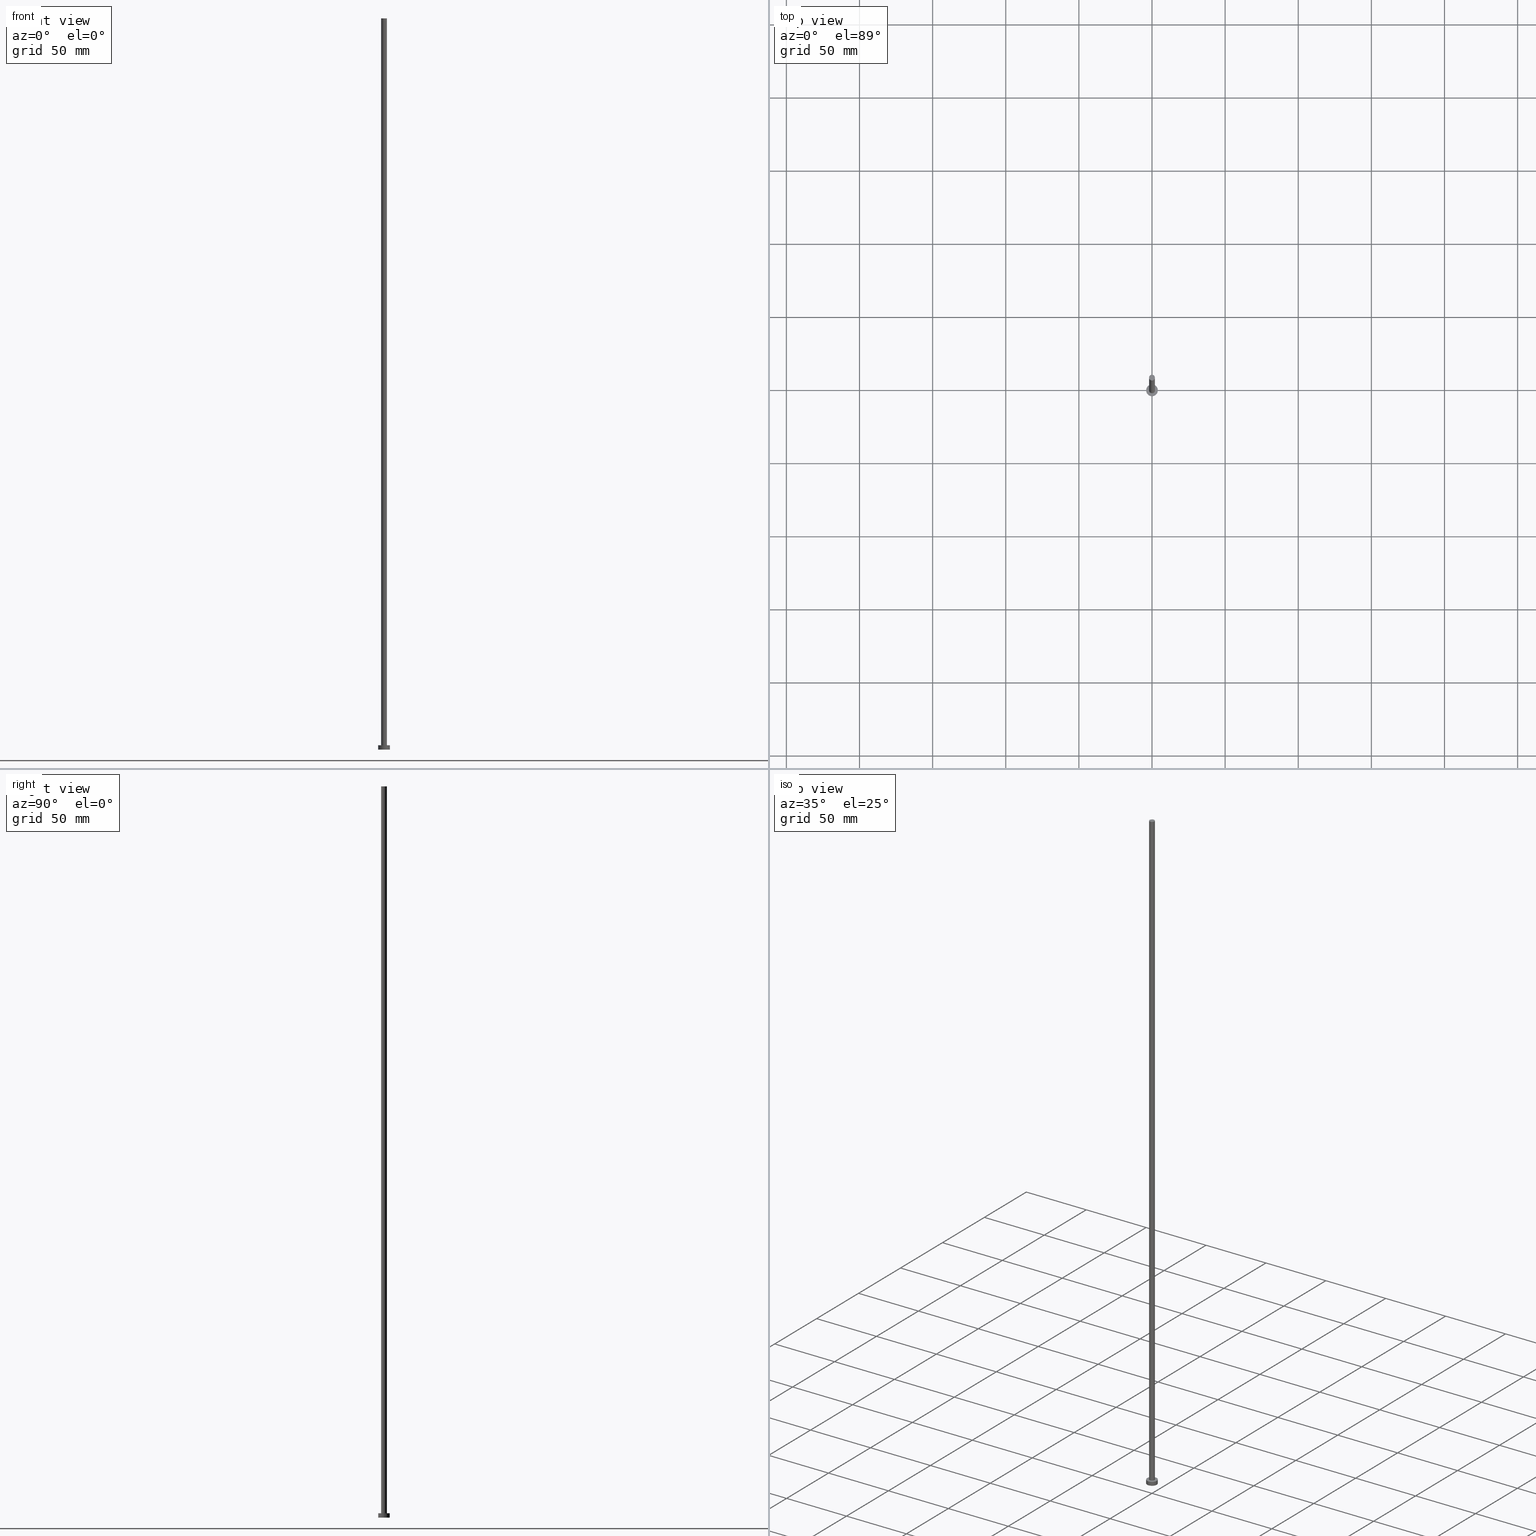
[diagram: canonical four-view strip — front | top / right | iso, engineering-drawing reading convention]
A machine part, canonical four-view strip (front | top / right | iso — engineering-drawing reading convention). The complete STEP part file that produces these views, byte-faithful:
ISO-10303-21;
HEADER;
FILE_DESCRIPTION (( 'STEP AP203' ),
    '1' );
FILE_NAME ('b286.STEP',
    '2026-02-06T12:42:15',
    ( '' ),
    ( '' ),
    'SwSTEP 2.0',
    'SolidWorks 2019',
    '' );
FILE_SCHEMA (( 'CONFIG_CONTROL_DESIGN' ));
ENDSEC;

DATA;
#1 = PERSON_AND_ORGANIZATION_ROLE ( 'design_supplier' ) ;
#2 = APPROVAL ( #67, 'NEUR�EN�' ) ;
#3 = AXIS2_PLACEMENT_3D ( 'NONE', #215, #155, #243 ) ;
#4 = CARTESIAN_POINT ( 'NONE',  ( 0.000000000000000000, 0.000000000000000000, 500.0000000000000000 ) ) ;
#5 = EDGE_CURVE ( 'NONE', #96, #57, #226, .T. ) ;
#6 = EDGE_LOOP ( 'NONE', ( #81, #114 ) ) ;
#7 = DIRECTION ( 'NONE',  ( -0.000000000000000000, -0.000000000000000000, -1.000000000000000000 ) ) ;
#8 = CIRCLE ( 'NONE', #43, 4.000000000000000000 ) ;
#9 = CC_DESIGN_PERSON_AND_ORGANIZATION_ASSIGNMENT ( #78, #26, ( #107 ) ) ;
#10 = DIRECTION ( 'NONE',  ( 1.000000000000000000, 0.000000000000000000, 0.000000000000000000 ) ) ;
#11 = DIRECTION ( 'NONE',  ( -0.000000000000000000, -0.000000000000000000, -1.000000000000000000 ) ) ;
#12 = COORDINATED_UNIVERSAL_TIME_OFFSET ( 1, 0, .AHEAD. ) ;
#13 = MECHANICAL_CONTEXT ( 'NONE', #202, 'mechanical' ) ;
#14 = DIRECTION ( 'NONE',  ( 0.000000000000000000, 0.000000000000000000, 1.000000000000000000 ) ) ;
#15 = APPROVAL_DATE_TIME ( #150, #126 ) ;
#16 = CARTESIAN_POINT ( 'NONE',  ( 0.000000000000000000, 0.000000000000000000, 0.000000000000000000 ) ) ;
#17 = CYLINDRICAL_SURFACE ( 'NONE', #42, 4.000000000000000000 ) ;
#18 = EDGE_CURVE ( 'NONE', #191, #151, #28, .T. ) ;
#19 = ORIENTED_EDGE ( 'NONE', *, *, #246, .F. ) ;
#20 = ORIENTED_EDGE ( 'NONE', *, *, #212, .T. ) ;
#21 = EDGE_LOOP ( 'NONE', ( #209, #20, #196, #19 ) ) ;
#22 =( NAMED_UNIT ( * ) SI_UNIT ( $, .STERADIAN. ) SOLID_ANGLE_UNIT ( ) );
#23 =( LENGTH_UNIT ( ) NAMED_UNIT ( * ) SI_UNIT ( .MILLI., .METRE. ) );
#24 = CARTESIAN_POINT ( 'NONE',  ( -4.000000000000000000, 0.000000000000000000, 3.000000000000000000 ) ) ;
#25 = CC_DESIGN_PERSON_AND_ORGANIZATION_ASSIGNMENT ( #39, #1, ( #101 ) ) ;
#26 = PERSON_AND_ORGANIZATION_ROLE ( 'classification_officer' ) ;
#27 = CC_DESIGN_APPROVAL ( #2, ( #101 ) ) ;
#28 = LINE ( 'NONE', #139, #219 ) ;
#29 = EDGE_LOOP ( 'NONE', ( #65, #203, #135, #252 ) ) ;
#30 = CALENDAR_DATE ( 2026, 6, 2 ) ;
#31 = EDGE_CURVE ( 'NONE', #151, #235, #99, .T. ) ;
#32 = CARTESIAN_POINT ( 'NONE',  ( 0.000000000000000000, 0.000000000000000000, 3.000000000000000000 ) ) ;
#33 = AXIS2_PLACEMENT_3D ( 'NONE', #182, #146, #10 ) ;
#34 = APPROVAL_ROLE ( '' ) ;
#35 = CARTESIAN_POINT ( 'NONE',  ( 2.000000000000000000, 2.449293598294705921E-16, 3.000000000000000000 ) ) ;
#36 = CARTESIAN_POINT ( 'NONE',  ( -4.000000000000000000, 0.000000000000000000, 3.000000000000000000 ) ) ;
#37 = DIRECTION ( 'NONE',  ( 1.000000000000000000, 0.000000000000000000, 0.000000000000000000 ) ) ;
#38 = PRODUCT_RELATED_PRODUCT_CATEGORY ( 'detail', '', ( #80 ) ) ;
#39 = PERSON_AND_ORGANIZATION ( #156, #86 ) ;
#40 = DIRECTION ( 'NONE',  ( -1.000000000000000000, 0.000000000000000000, 0.000000000000000000 ) ) ;
#41 = EDGE_CURVE ( 'NONE', #105, #235, #85, .T. ) ;
#42 = AXIS2_PLACEMENT_3D ( 'NONE', #92, #7, #169 ) ;
#43 = AXIS2_PLACEMENT_3D ( 'NONE', #16, #91, #168 ) ;
#44 = CC_DESIGN_PERSON_AND_ORGANIZATION_ASSIGNMENT ( #134, #220, ( #101 ) ) ;
#45 = AXIS2_PLACEMENT_3D ( 'NONE', #213, #217, #40 ) ;
#46 = EDGE_LOOP ( 'NONE', ( #73, #93 ) ) ;
#47 = EDGE_LOOP ( 'NONE', ( #121, #157 ) ) ;
#48 = CYLINDRICAL_SURFACE ( 'NONE', #118, 2.000000000000000000 ) ;
#49 = CC_DESIGN_APPROVAL ( #177, ( #107 ) ) ;
#50 = ADVANCED_FACE ( 'NONE', ( #127 ), #205, .F. ) ;
#51 = DATE_AND_TIME ( #30, #216 ) ;
#52 = EDGE_LOOP ( 'NONE', ( #56, #170, #123, #149 ) ) ;
#53 = AXIS2_PLACEMENT_3D ( 'NONE', #70, #54, #225 ) ;
#54 = DIRECTION ( 'NONE',  ( 0.000000000000000000, 0.000000000000000000, 1.000000000000000000 ) ) ;
#55 = CARTESIAN_POINT ( 'NONE',  ( 0.000000000000000000, 0.000000000000000000, 3.000000000000000000 ) ) ;
#56 = ORIENTED_EDGE ( 'NONE', *, *, #18, .F. ) ;
#57 = VERTEX_POINT ( 'NONE', #160 ) ;
#58 = LINE ( 'NONE', #24, #152 ) ;
#59 = EDGE_CURVE ( 'NONE', #192, #239, #248, .T. ) ;
#60 = LOCAL_TIME ( 13, 42, 15.00000000000000000, #228 ) ;
#61 = CALENDAR_DATE ( 2026, 6, 2 ) ;
#62 = PRODUCT_DEFINITION_SHAPE ( 'NONE', 'NONE',  #174 ) ;
#63 = AXIS2_PLACEMENT_3D ( 'NONE', #55, #172, #231 ) ;
#64 = MANIFOLD_SOLID_BREP ( 'P�idat vysunut�m3', #194 ) ;
#65 = ORIENTED_EDGE ( 'NONE', *, *, #212, .F. ) ;
#66 = PLANE ( 'NONE',  #181 ) ;
#67 = APPROVAL_STATUS ( 'not_yet_approved' ) ;
#68 = DIRECTION ( 'NONE',  ( -1.000000000000000000, 0.000000000000000000, 0.000000000000000000 ) ) ;
#69 = APPROVAL_DATE_TIME ( #167, #2 ) ;
#70 = CARTESIAN_POINT ( 'NONE',  ( 0.000000000000000000, 0.000000000000000000, 0.000000000000000000 ) ) ;
#71 = ORIENTED_EDGE ( 'NONE', *, *, #5, .F. ) ;
#72 = PERSON_AND_ORGANIZATION ( #156, #86 ) ;
#73 = ORIENTED_EDGE ( 'NONE', *, *, #199, .F. ) ;
#74 = EDGE_LOOP ( 'NONE', ( #71, #238 ) ) ;
#75 = CIRCLE ( 'NONE', #109, 2.000000000000000000 ) ;
#76 = ADVANCED_FACE ( 'NONE', ( #106 ), #48, .T. ) ;
#77 = AXIS2_PLACEMENT_3D ( 'NONE', #4, #79, #245 ) ;
#78 = PERSON_AND_ORGANIZATION ( #156, #86 ) ;
#79 = DIRECTION ( 'NONE',  ( 0.000000000000000000, 0.000000000000000000, 1.000000000000000000 ) ) ;
#80 = PRODUCT ( 'b286', 'b286', '', ( #13 ) ) ;
#81 = ORIENTED_EDGE ( 'NONE', *, *, #59, .T. ) ;
#82 = ADVANCED_FACE ( 'NONE', ( #206 ), #87, .T. ) ;
#83 = AXIS2_PLACEMENT_3D ( 'NONE', #32, #227, #186 ) ;
#84 = FACE_OUTER_BOUND ( 'NONE', #47, .T. ) ;
#85 = LINE ( 'NONE', #183, #178 ) ;
#86 = ORGANIZATION ( 'NEUR�EN�', 'NEUR�EN�', '' ) ;
#87 = CYLINDRICAL_SURFACE ( 'NONE', #223, 2.000000000000000000 ) ;
#88 = DATE_TIME_ROLE ( 'creation_date' ) ;
#89 = PERSON_AND_ORGANIZATION_ROLE ( 'design_owner' ) ;
#90 = CALENDAR_DATE ( 2026, 6, 2 ) ;
#91 = DIRECTION ( 'NONE',  ( 0.000000000000000000, 0.000000000000000000, 1.000000000000000000 ) ) ;
#92 = CARTESIAN_POINT ( 'NONE',  ( 0.000000000000000000, 0.000000000000000000, 3.000000000000000000 ) ) ;
#93 = ORIENTED_EDGE ( 'NONE', *, *, #31, .F. ) ;
#94 = LOCAL_TIME ( 13, 42, 15.00000000000000000, #112 ) ;
#95 = CALENDAR_DATE ( 2026, 6, 2 ) ;
#96 = VERTEX_POINT ( 'NONE', #144 ) ;
#97 = APPROVAL_PERSON_ORGANIZATION ( #142, #126, #34 ) ;
#98 = EDGE_CURVE ( 'NONE', #105, #191, #75, .T. ) ;
#99 = CIRCLE ( 'NONE', #33, 2.000000000000000000 ) ;
#100 = DIRECTION ( 'NONE',  ( -0.000000000000000000, -0.000000000000000000, -1.000000000000000000 ) ) ;
#101 = PRODUCT_DEFINITION_FORMATION_WITH_SPECIFIED_SOURCE ( 'LIBOVOLN�', '', #80, .NOT_KNOWN. ) ;
#102 = ADVANCED_FACE ( 'NONE', ( #190 ), #17, .T. ) ;
#103 = DIRECTION ( 'NONE',  ( -0.000000000000000000, -0.000000000000000000, -1.000000000000000000 ) ) ;
#104 = AXIS2_PLACEMENT_3D ( 'NONE', #128, #14, #147 ) ;
#105 = VERTEX_POINT ( 'NONE', #251 ) ;
#106 = FACE_OUTER_BOUND ( 'NONE', #52, .T. ) ;
#107 = SECURITY_CLASSIFICATION ( '', '', #214 ) ;
#108 = FACE_OUTER_BOUND ( 'NONE', #6, .T. ) ;
#109 = AXIS2_PLACEMENT_3D ( 'NONE', #180, #110, #122 ) ;
#110 = DIRECTION ( 'NONE',  ( 0.000000000000000000, 0.000000000000000000, 1.000000000000000000 ) ) ;
#111 = ORIENTED_EDGE ( 'NONE', *, *, #31, .T. ) ;
#112 = COORDINATED_UNIVERSAL_TIME_OFFSET ( 1, 0, .AHEAD. ) ;
#113 = LINE ( 'NONE', #255, #204 ) ;
#114 = ORIENTED_EDGE ( 'NONE', *, *, #224, .T. ) ;
#115 = CIRCLE ( 'NONE', #195, 4.000000000000000000 ) ;
#116 = CARTESIAN_POINT ( 'NONE',  ( -2.000000000000000000, 0.000000000000000000, 3.000000000000000000 ) ) ;
#117 = APPROVAL_STATUS ( 'not_yet_approved' ) ;
#118 = AXIS2_PLACEMENT_3D ( 'NONE', #124, #11, #249 ) ;
#119 = CARTESIAN_POINT ( 'NONE',  ( 0.000000000000000000, 0.000000000000000000, 0.000000000000000000 ) ) ;
#120 = DIRECTION ( 'NONE',  ( 1.000000000000000000, 0.000000000000000000, 0.000000000000000000 ) ) ;
#121 = ORIENTED_EDGE ( 'NONE', *, *, #98, .T. ) ;
#122 = DIRECTION ( 'NONE',  ( 1.000000000000000000, 0.000000000000000000, 0.000000000000000000 ) ) ;
#123 = ORIENTED_EDGE ( 'NONE', *, *, #41, .T. ) ;
#124 = CARTESIAN_POINT ( 'NONE',  ( 0.000000000000000000, 0.000000000000000000, 500.0000000000000000 ) ) ;
#125 = LOCAL_TIME ( 13, 42, 15.00000000000000000, #234 ) ;
#126 = APPROVAL ( #229, 'NEUR�EN�' ) ;
#127 = FACE_OUTER_BOUND ( 'NONE', #74, .T. ) ;
#128 = CARTESIAN_POINT ( 'NONE',  ( 0.000000000000000000, 0.000000000000000000, 3.000000000000000000 ) ) ;
#129 = EDGE_LOOP ( 'NONE', ( #230, #207, #111, #159 ) ) ;
#130 = CC_DESIGN_DATE_AND_TIME_ASSIGNMENT ( #153, #241, ( #107 ) ) ;
#131 = PERSON_AND_ORGANIZATION ( #156, #86 ) ;
#132 =( NAMED_UNIT ( * ) PLANE_ANGLE_UNIT ( ) SI_UNIT ( $, .RADIAN. ) );
#133 = ADVANCED_BREP_SHAPE_REPRESENTATION ( 'b286', ( #64, #176 ), #161 ) ;
#134 = PERSON_AND_ORGANIZATION ( #156, #86 ) ;
#135 = ORIENTED_EDGE ( 'NONE', *, *, #246, .T. ) ;
#136 = DIRECTION ( 'NONE',  ( 0.000000000000000000, 0.000000000000000000, 1.000000000000000000 ) ) ;
#137 = CARTESIAN_POINT ( 'NONE',  ( 0.000000000000000000, 0.000000000000000000, 500.0000000000000000 ) ) ;
#138 = DIRECTION ( 'NONE',  ( 1.000000000000000000, 0.000000000000000000, -0.000000000000000000 ) ) ;
#139 = CARTESIAN_POINT ( 'NONE',  ( 2.000000000000000000, 2.449293598294705921E-16, 500.0000000000000000 ) ) ;
#140 = CC_DESIGN_DATE_AND_TIME_ASSIGNMENT ( #51, #88, ( #174 ) ) ;
#141 = APPROVAL_ROLE ( '' ) ;
#142 = PERSON_AND_ORGANIZATION ( #156, #86 ) ;
#143 = FACE_BOUND ( 'NONE', #46, .T. ) ;
#144 = CARTESIAN_POINT ( 'NONE',  ( -4.000000000000000000, 0.000000000000000000, 0.000000000000000000 ) ) ;
#145 = ADVANCED_FACE ( 'NONE', ( #84 ), #66, .T. ) ;
#146 = DIRECTION ( 'NONE',  ( 0.000000000000000000, 0.000000000000000000, 1.000000000000000000 ) ) ;
#147 = DIRECTION ( 'NONE',  ( 1.000000000000000000, 0.000000000000000000, -0.000000000000000000 ) ) ;
#148 = APPROVAL_DATE_TIME ( #254, #177 ) ;
#149 = ORIENTED_EDGE ( 'NONE', *, *, #199, .T. ) ;
#150 = DATE_AND_TIME ( #171, #94 ) ;
#151 = VERTEX_POINT ( 'NONE', #35 ) ;
#152 = VECTOR ( 'NONE', #100, 1000.000000000000000 ) ;
#153 = DATE_AND_TIME ( #61, #237 ) ;
#154 = APPROVAL_PERSON_ORGANIZATION ( #163, #2, #141 ) ;
#155 = DIRECTION ( 'NONE',  ( 0.000000000000000000, 0.000000000000000000, 1.000000000000000000 ) ) ;
#156 = PERSON ( 'NEUR�EN�', 'NEUR�EN�', 'NEUR�EN�', ('NEUR�EN�'), ('NEUR�EN�'), ('NEUR�EN�') ) ;
#157 = ORIENTED_EDGE ( 'NONE', *, *, #253, .T. ) ;
#158 = DIRECTION ( 'NONE',  ( 0.000000000000000000, 0.000000000000000000, 1.000000000000000000 ) ) ;
#159 = ORIENTED_EDGE ( 'NONE', *, *, #41, .F. ) ;
#160 = CARTESIAN_POINT ( 'NONE',  ( 4.000000000000000000, 4.898587196589412829E-16, 0.000000000000000000 ) ) ;
#161 =( GEOMETRIC_REPRESENTATION_CONTEXT ( 3 ) GLOBAL_UNCERTAINTY_ASSIGNED_CONTEXT ( ( #179 ) ) GLOBAL_UNIT_ASSIGNED_CONTEXT ( ( #23, #132, #22 ) ) REPRESENTATION_CONTEXT ( 'NONE', 'WORKASPACE' ) );
#162 = APPLICATION_CONTEXT ( 'configuration controlled 3d designs of mechanical parts and assemblies' ) ;
#163 = PERSON_AND_ORGANIZATION ( #156, #86 ) ;
#164 = APPLICATION_PROTOCOL_DEFINITION ( 'international standard', 'config_control_design', 1994, #162 ) ;
#165 = CARTESIAN_POINT ( 'NONE',  ( 0.000000000000000000, 0.000000000000000000, 500.0000000000000000 ) ) ;
#166 = ADVANCED_FACE ( 'NONE', ( #143, #108 ), #185, .T. ) ;
#167 = DATE_AND_TIME ( #90, #60 ) ;
#168 = DIRECTION ( 'NONE',  ( 1.000000000000000000, 0.000000000000000000, 0.000000000000000000 ) ) ;
#169 = DIRECTION ( 'NONE',  ( -1.000000000000000000, 0.000000000000000000, 0.000000000000000000 ) ) ;
#170 = ORIENTED_EDGE ( 'NONE', *, *, #98, .F. ) ;
#171 = CALENDAR_DATE ( 2026, 6, 2 ) ;
#172 = DIRECTION ( 'NONE',  ( 0.000000000000000000, 0.000000000000000000, 1.000000000000000000 ) ) ;
#173 = APPROVAL_PERSON_ORGANIZATION ( #131, #177, #218 ) ;
#174 = PRODUCT_DEFINITION ( 'NEZN�M�', '', #101, #187 ) ;
#175 = EDGE_CURVE ( 'NONE', #57, #96, #8, .T. ) ;
#176 = AXIS2_PLACEMENT_3D ( 'NONE', #119, #158, #120 ) ;
#177 = APPROVAL ( #117, 'NEUR�EN�' ) ;
#178 = VECTOR ( 'NONE', #232, 1000.000000000000000 ) ;
#179 = UNCERTAINTY_MEASURE_WITH_UNIT (LENGTH_MEASURE( 1.000000000000000082E-05 ), #23, 'distance_accuracy_value', 'NONE');
#180 = CARTESIAN_POINT ( 'NONE',  ( 0.000000000000000000, 0.000000000000000000, 500.0000000000000000 ) ) ;
#181 = AXIS2_PLACEMENT_3D ( 'NONE', #137, #136, #138 ) ;
#182 = CARTESIAN_POINT ( 'NONE',  ( 0.000000000000000000, 0.000000000000000000, 3.000000000000000000 ) ) ;
#183 = CARTESIAN_POINT ( 'NONE',  ( -2.000000000000000000, 0.000000000000000000, 500.0000000000000000 ) ) ;
#184 = PERSON_AND_ORGANIZATION_ROLE ( 'creator' ) ;
#185 = PLANE ( 'NONE',  #104 ) ;
#186 = DIRECTION ( 'NONE',  ( 1.000000000000000000, 0.000000000000000000, 0.000000000000000000 ) ) ;
#187 = DESIGN_CONTEXT ( 'detailed design', #162, 'design' ) ;
#188 = CIRCLE ( 'NONE', #77, 2.000000000000000000 ) ;
#189 = SHAPE_DEFINITION_REPRESENTATION ( #62, #133 ) ;
#190 = FACE_OUTER_BOUND ( 'NONE', #29, .T. ) ;
#191 = VERTEX_POINT ( 'NONE', #233 ) ;
#192 = VERTEX_POINT ( 'NONE', #36 ) ;
#193 = CC_DESIGN_PERSON_AND_ORGANIZATION_ASSIGNMENT ( #72, #89, ( #80 ) ) ;
#194 = CLOSED_SHELL ( 'NONE', ( #82, #222, #102, #166, #50, #76, #145 ) ) ;
#195 = AXIS2_PLACEMENT_3D ( 'NONE', #200, #210, #37 ) ;
#196 = ORIENTED_EDGE ( 'NONE', *, *, #175, .T. ) ;
#197 = CC_DESIGN_SECURITY_CLASSIFICATION ( #107, ( #101 ) ) ;
#198 = COORDINATED_UNIVERSAL_TIME_OFFSET ( 1, 0, .AHEAD. ) ;
#199 = EDGE_CURVE ( 'NONE', #235, #151, #244, .T. ) ;
#200 = CARTESIAN_POINT ( 'NONE',  ( 0.000000000000000000, 0.000000000000000000, 3.000000000000000000 ) ) ;
#201 = CARTESIAN_POINT ( 'NONE',  ( 4.000000000000000000, 4.898587196589412829E-16, 3.000000000000000000 ) ) ;
#202 = APPLICATION_CONTEXT ( 'configuration controlled 3d designs of mechanical parts and assemblies' ) ;
#203 = ORIENTED_EDGE ( 'NONE', *, *, #59, .F. ) ;
#204 = VECTOR ( 'NONE', #236, 1000.000000000000000 ) ;
#205 = PLANE ( 'NONE',  #53 ) ;
#206 = FACE_OUTER_BOUND ( 'NONE', #129, .T. ) ;
#207 = ORIENTED_EDGE ( 'NONE', *, *, #18, .T. ) ;
#208 = PERSON_AND_ORGANIZATION ( #156, #86 ) ;
#209 = ORIENTED_EDGE ( 'NONE', *, *, #224, .F. ) ;
#210 = DIRECTION ( 'NONE',  ( 0.000000000000000000, 0.000000000000000000, 1.000000000000000000 ) ) ;
#211 = APPLICATION_PROTOCOL_DEFINITION ( 'international standard', 'config_control_design', 1994, #202 ) ;
#212 = EDGE_CURVE ( 'NONE', #239, #57, #113, .T. ) ;
#213 = CARTESIAN_POINT ( 'NONE',  ( 0.000000000000000000, 0.000000000000000000, 3.000000000000000000 ) ) ;
#214 = SECURITY_CLASSIFICATION_LEVEL ( 'unclassified' ) ;
#215 = CARTESIAN_POINT ( 'NONE',  ( 0.000000000000000000, 0.000000000000000000, 0.000000000000000000 ) ) ;
#216 = LOCAL_TIME ( 13, 42, 15.00000000000000000, #12 ) ;
#217 = DIRECTION ( 'NONE',  ( -0.000000000000000000, -0.000000000000000000, -1.000000000000000000 ) ) ;
#218 = APPROVAL_ROLE ( '' ) ;
#219 = VECTOR ( 'NONE', #103, 1000.000000000000000 ) ;
#220 = PERSON_AND_ORGANIZATION_ROLE ( 'creator' ) ;
#221 = CC_DESIGN_PERSON_AND_ORGANIZATION_ASSIGNMENT ( #208, #184, ( #174 ) ) ;
#222 = ADVANCED_FACE ( 'NONE', ( #250 ), #240, .T. ) ;
#223 = AXIS2_PLACEMENT_3D ( 'NONE', #165, #247, #68 ) ;
#224 = EDGE_CURVE ( 'NONE', #239, #192, #115, .T. ) ;
#225 = DIRECTION ( 'NONE',  ( 1.000000000000000000, 0.000000000000000000, -0.000000000000000000 ) ) ;
#226 = CIRCLE ( 'NONE', #3, 4.000000000000000000 ) ;
#227 = DIRECTION ( 'NONE',  ( 0.000000000000000000, 0.000000000000000000, 1.000000000000000000 ) ) ;
#228 = COORDINATED_UNIVERSAL_TIME_OFFSET ( 1, 0, .AHEAD. ) ;
#229 = APPROVAL_STATUS ( 'not_yet_approved' ) ;
#230 = ORIENTED_EDGE ( 'NONE', *, *, #253, .F. ) ;
#231 = DIRECTION ( 'NONE',  ( 1.000000000000000000, 0.000000000000000000, 0.000000000000000000 ) ) ;
#232 = DIRECTION ( 'NONE',  ( -0.000000000000000000, -0.000000000000000000, -1.000000000000000000 ) ) ;
#233 = CARTESIAN_POINT ( 'NONE',  ( 2.000000000000000000, 2.449293598294705921E-16, 500.0000000000000000 ) ) ;
#234 = COORDINATED_UNIVERSAL_TIME_OFFSET ( 1, 0, .AHEAD. ) ;
#235 = VERTEX_POINT ( 'NONE', #116 ) ;
#236 = DIRECTION ( 'NONE',  ( -0.000000000000000000, -0.000000000000000000, -1.000000000000000000 ) ) ;
#237 = LOCAL_TIME ( 13, 42, 15.00000000000000000, #198 ) ;
#238 = ORIENTED_EDGE ( 'NONE', *, *, #175, .F. ) ;
#239 = VERTEX_POINT ( 'NONE', #201 ) ;
#240 = CYLINDRICAL_SURFACE ( 'NONE', #45, 4.000000000000000000 ) ;
#241 = DATE_TIME_ROLE ( 'classification_date' ) ;
#242 = CC_DESIGN_APPROVAL ( #126, ( #174 ) ) ;
#243 = DIRECTION ( 'NONE',  ( 1.000000000000000000, 0.000000000000000000, 0.000000000000000000 ) ) ;
#244 = CIRCLE ( 'NONE', #63, 2.000000000000000000 ) ;
#245 = DIRECTION ( 'NONE',  ( 1.000000000000000000, 0.000000000000000000, 0.000000000000000000 ) ) ;
#246 = EDGE_CURVE ( 'NONE', #192, #96, #58, .T. ) ;
#247 = DIRECTION ( 'NONE',  ( -0.000000000000000000, -0.000000000000000000, -1.000000000000000000 ) ) ;
#248 = CIRCLE ( 'NONE', #83, 4.000000000000000000 ) ;
#249 = DIRECTION ( 'NONE',  ( -1.000000000000000000, 0.000000000000000000, 0.000000000000000000 ) ) ;
#250 = FACE_OUTER_BOUND ( 'NONE', #21, .T. ) ;
#251 = CARTESIAN_POINT ( 'NONE',  ( -2.000000000000000000, 0.000000000000000000, 500.0000000000000000 ) ) ;
#252 = ORIENTED_EDGE ( 'NONE', *, *, #5, .T. ) ;
#253 = EDGE_CURVE ( 'NONE', #191, #105, #188, .T. ) ;
#254 = DATE_AND_TIME ( #95, #125 ) ;
#255 = CARTESIAN_POINT ( 'NONE',  ( 4.000000000000000000, 4.898587196589412829E-16, 3.000000000000000000 ) ) ;
ENDSEC;
END-ISO-10303-21;
